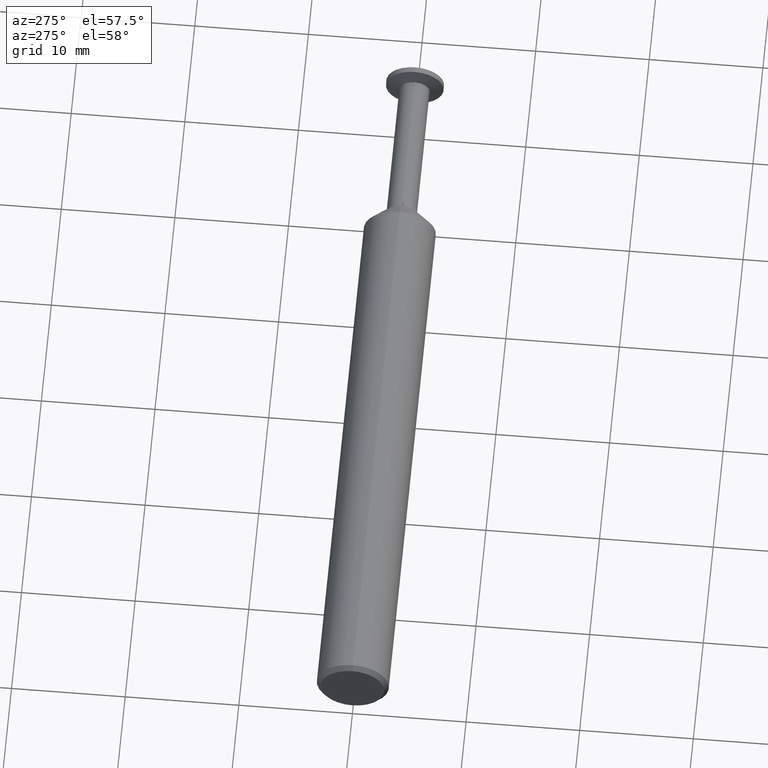
[diagram: clean part render]
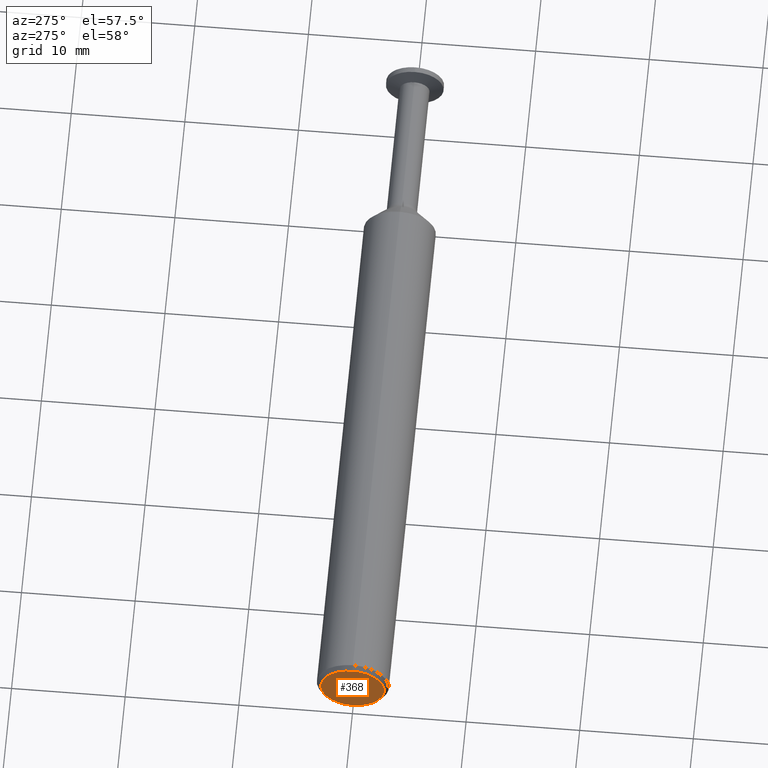
[diagram: same view with one face highlighted and labeled with its STEP entity id]
A machine part, auxiliary view. The second image highlights one B-rep face of the part: STEP entity #368.
In plain terms, the highlighted planar face has unit normal (1, 0, 0).
Its self-contained STEP definition (entity closure, byte-faithful):
#12 = AXIS2_PLACEMENT_3D ( 'NONE', #125, #201, #194 ) ;
#24 = AXIS2_PLACEMENT_3D ( 'NONE', #55, #502, #218 ) ;
#46 = CIRCLE ( 'NONE', #105, 0.1098499999999999199 ) ;
#55 = CARTESIAN_POINT ( 'NONE',  ( 0.000000000000000000, 0.000000000000000000, 0.000000000000000000 ) ) ;
#76 = CARTESIAN_POINT ( 'NONE',  ( 0.000000000000000000, 0.000000000000000000, -0.1098499999999999199 ) ) ;
#80 = CIRCLE ( 'NONE', #12, 0.1098499999999999199 ) ;
#87 = DIRECTION ( 'NONE',  ( 0.000000000000000000, 0.000000000000000000, -1.000000000000000000 ) ) ;
#94 = FACE_OUTER_BOUND ( 'NONE', #441, .T. ) ;
#105 = AXIS2_PLACEMENT_3D ( 'NONE', #295, #323, #87 ) ;
#125 = CARTESIAN_POINT ( 'NONE',  ( 0.000000000000000000, 0.000000000000000000, 0.000000000000000000 ) ) ;
#147 = EDGE_CURVE ( 'NONE', #375, #468, #46, .T. ) ;
#194 = DIRECTION ( 'NONE',  ( 0.000000000000000000, 0.000000000000000000, -1.000000000000000000 ) ) ;
#201 = DIRECTION ( 'NONE',  ( -1.000000000000000000, -0.000000000000000000, -0.000000000000000000 ) ) ;
#218 = DIRECTION ( 'NONE',  ( 0.000000000000000000, 0.000000000000000000, -1.000000000000000000 ) ) ;
#256 = PLANE ( 'NONE',  #24 ) ;
#295 = CARTESIAN_POINT ( 'NONE',  ( 0.000000000000000000, 0.000000000000000000, 0.000000000000000000 ) ) ;
#323 = DIRECTION ( 'NONE',  ( -1.000000000000000000, -0.000000000000000000, -0.000000000000000000 ) ) ;
#368 = ADVANCED_FACE ( 'NONE', ( #94 ), #256, .F. ) ;
#375 = VERTEX_POINT ( 'NONE', #76 ) ;
#387 = ORIENTED_EDGE ( 'NONE', *, *, #418, .T. ) ;
#418 = EDGE_CURVE ( 'NONE', #468, #375, #80, .T. ) ;
#441 = EDGE_LOOP ( 'NONE', ( #507, #387 ) ) ;
#468 = VERTEX_POINT ( 'NONE', #482 ) ;
#482 = CARTESIAN_POINT ( 'NONE',  ( 0.000000000000000000, 1.437123018799418210E-17, 0.1098499999999999199 ) ) ;
#502 = DIRECTION ( 'NONE',  ( 1.000000000000000000, 0.000000000000000000, 0.000000000000000000 ) ) ;
#507 = ORIENTED_EDGE ( 'NONE', *, *, #147, .T. ) ;